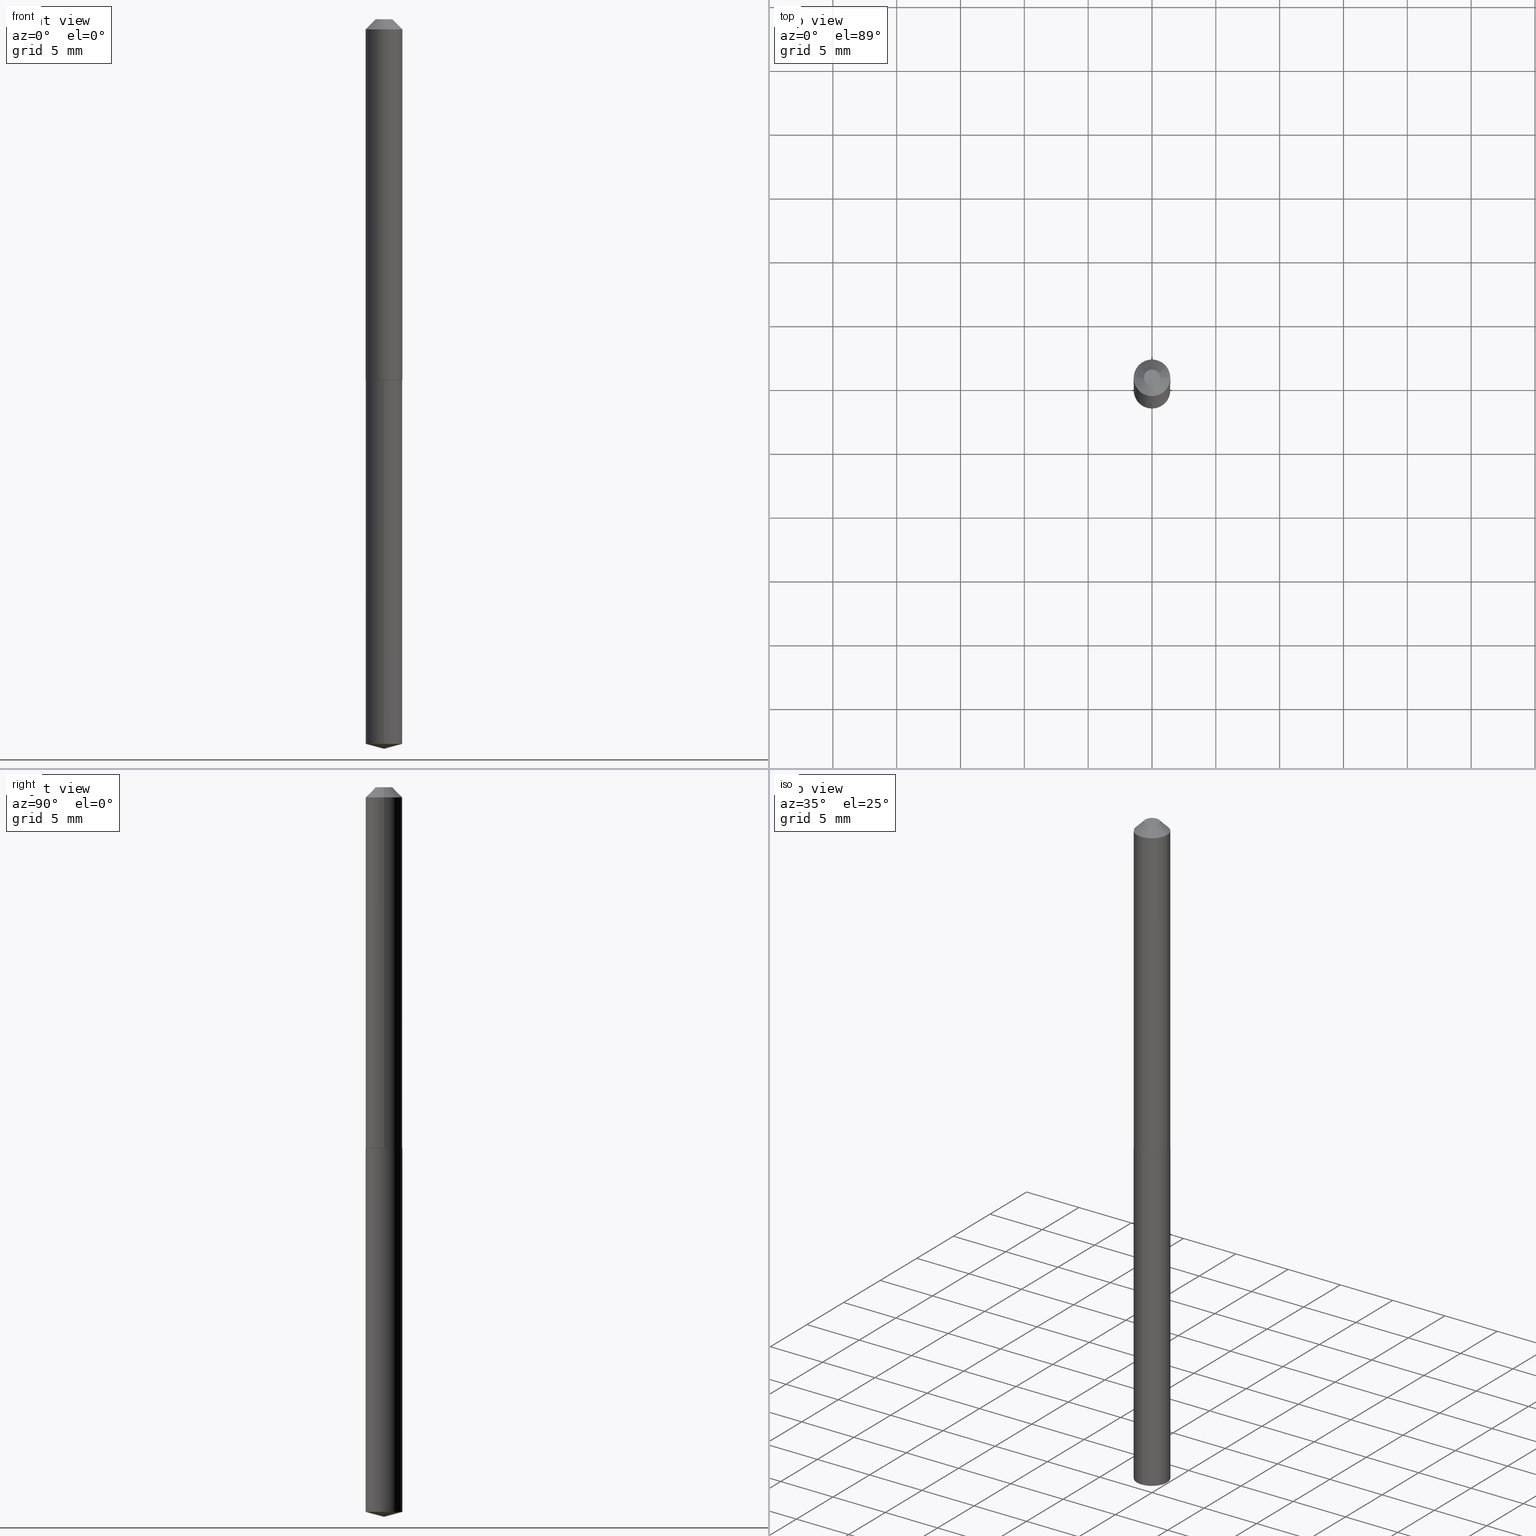
[diagram: canonical four-view strip — front | top / right | iso, engineering-drawing reading convention]
A machine part, canonical four-view strip (front | top / right | iso — engineering-drawing reading convention). The complete STEP part file that produces these views, byte-faithful:
ISO-10303-21;
HEADER;
FILE_DESCRIPTION (( 'STEP AP203' ),
    '1' );
FILE_NAME ('58015.STEP',
    '2024-04-23T00:13:43',
    ( '' ),
    ( '' ),
    'SwSTEP 2.0',
    'SolidWorks 2023',
    '' );
FILE_SCHEMA (( 'CONFIG_CONTROL_DESIGN' ));
ENDSEC;

DATA;
#1 = CONICAL_SURFACE ( 'NONE', #65, 146.9311341562565758, 1.308996938995749870 ) ;
#2 = APPROVAL_PERSON_ORGANIZATION ( #264, #121, #308 ) ;
#3 = FACE_OUTER_BOUND ( 'NONE', #337, .T. ) ;
#4 = PRODUCT_RELATED_PRODUCT_CATEGORY ( 'detail', '', ( #14 ) ) ;
#5 = DIRECTION ( 'NONE',  ( -2.446326922629203829E-29, 3.490252467254286211E-15, 1.000000000000000000 ) ) ;
#6 = DIRECTION ( 'NONE',  ( -2.446326922629204109E-29, 3.490252467254285817E-15, 1.000000000000000000 ) ) ;
#7 = ADVANCED_FACE ( 'NONE', ( #342 ), #165, .T. ) ;
#8 = DIRECTION ( 'NONE',  ( 0.7071067811866441621, -2.468850131083269169E-15, 0.7071067811864508723 ) ) ;
#9 = VECTOR ( 'NONE', #56, 39.37007874015748143 ) ;
#10 = DIRECTION ( 'NONE',  ( -6.745023994389843077E-15, -0.9659258262890679791, 0.2588190451025215721 ) ) ;
#11 =( CONVERSION_BASED_UNIT ( 'INCH', #75 ) LENGTH_UNIT ( ) NAMED_UNIT ( #122 ) );
#12 = CARTESIAN_POINT ( 'NONE',  ( -9.080880307576544813E-28, 1.295570786734296165E-13, 37.12007874015748143 ) ) ;
#13 = EDGE_LOOP ( 'NONE', ( #43, #143 ) ) ;
#14 = PRODUCT ( '58015', '58015', '', ( #178 ) ) ;
#15 = DIRECTION ( 'NONE',  ( 1.000000000000000000, -6.982962677686265133E-15, 0.000000000000000000 ) ) ;
#16 = AXIS2_PLACEMENT_3D ( 'NONE', #126, #278, #313 ) ;
#17 = CC_DESIGN_DATE_AND_TIME_ASSIGNMENT ( #208, #61, ( #167 ) ) ;
#18 = CLOSED_SHELL ( 'NONE', ( #356, #32, #326, #247, #380 ) ) ;
#19 = DIRECTION ( 'NONE',  ( 1.000000000000000000, -6.982962677686265133E-15, 0.000000000000000000 ) ) ;
#20 = ORIENTED_EDGE ( 'NONE', *, *, #198, .T. ) ;
#21 = CARTESIAN_POINT ( 'NONE',  ( 7.642090019328602662E-31, -1.091087918388490267E-16, -0.03125000000000020817 ) ) ;
#22 = ORIENTED_EDGE ( 'NONE', *, *, #91, .T. ) ;
#23 = APPROVAL ( #89, 'UNSPECIFIED' ) ;
#24 = DIRECTION ( 'NONE',  ( -6.982962677686265922E-15, -1.000000000000000000, 4.835129192326129423E-15 ) ) ;
#25 = CALENDAR_DATE ( 2024, 22, 4 ) ;
#26 = EDGE_CURVE ( 'NONE', #240, #77, #299, .T. ) ;
#27 = COORDINATED_UNIVERSAL_TIME_OFFSET ( 5, 0, .BEHIND. ) ;
#28 = AXIS2_PLACEMENT_3D ( 'NONE', #296, #384, #85 ) ;
#29 = CARTESIAN_POINT ( 'NONE',  ( 4.014566457045113930E-16, 0.05649999999999611583, -1.112999999999999767 ) ) ;
#30 = ORIENTED_EDGE ( 'NONE', *, *, #234, .T. ) ;
#31 = PERSON_AND_ORGANIZATION ( #272, #301 ) ;
#32 = ADVANCED_FACE ( 'NONE', ( #131 ), #1, .T. ) ;
#33 = CARTESIAN_POINT ( 'NONE',  ( 0.05650000000000000161, -4.967269287129405456E-16, -0.03125000000000020817 ) ) ;
#34 = DATE_AND_TIME ( #246, #112 ) ;
#35 = AXIS2_PLACEMENT_3D ( 'NONE', #41, #137, #19 ) ;
#36 = EDGE_LOOP ( 'NONE', ( #136, #373 ) ) ;
#37 = ORIENTED_EDGE ( 'NONE', *, *, #361, .T. ) ;
#38 = CARTESIAN_POINT ( 'NONE',  ( -3.945373912892193774E-16, -0.05650000000000780093, -2.234860870627641383 ) ) ;
#39 = DIRECTION ( 'NONE',  ( -0.7071067811865451302, 2.468850131082231817E-15, -0.7071067811865499042 ) ) ;
#40 = DIRECTION ( 'NONE',  ( -6.982962677686267499E-15, -1.000000000000000000, 3.510303681827602962E-15 ) ) ;
#41 = CARTESIAN_POINT ( 'NONE',  ( 2.720584046880963679E-29, -3.884272989462998480E-15, -1.112499999999999600 ) ) ;
#42 = CARTESIAN_POINT ( 'NONE',  ( -2.994835545909303567E-48, 4.275831445896940960E-34, 1.224646799147343755E-19 ) ) ;
#43 = ORIENTED_EDGE ( 'NONE', *, *, #292, .F. ) ;
#44 = CARTESIAN_POINT ( 'NONE',  ( 0.05650000000000006406, -3.945373912892745484E-16, 2.755039878324706638E-30 ) ) ;
#45 = CIRCLE ( 'NONE', #323, 0.05650000000000000161 ) ;
#46 = ORIENTED_EDGE ( 'NONE', *, *, #63, .T. ) ;
#47 = UNCERTAINTY_MEASURE_WITH_UNIT (LENGTH_MEASURE( 1.000000000000000082E-05 ), #11, 'distance_accuracy_value', 'NONE');
#48 = DIRECTION ( 'NONE',  ( -2.445468806185136597E-29, 3.491481338843145583E-15, 1.000000000000000000 ) ) ;
#49 = ADVANCED_FACE ( 'NONE', ( #68 ), #128, .T. ) ;
#50 = CARTESIAN_POINT ( 'NONE',  ( 2.721806781284056481E-29, -3.886018730132419983E-15, -1.112999999999999767 ) ) ;
#51 = ORIENTED_EDGE ( 'NONE', *, *, #158, .T. ) ;
#52 = CARTESIAN_POINT ( 'NONE',  ( -1.497417772954651783E-48, 2.137915722948470480E-34, 6.123233995736718774E-20 ) ) ;
#53 = ORIENTED_EDGE ( 'NONE', *, *, #267, .F. ) ;
#54 = LOCAL_TIME ( 20, 13, 43.00000000000000000, #235 ) ;
#55 = PERSON_AND_ORGANIZATION ( #272, #301 ) ;
#56 = DIRECTION ( 'NONE',  ( -2.445468806185136877E-29, 3.491481338843145188E-15, 1.000000000000000000 ) ) ;
#57 = APPROVAL_DATE_TIME ( #302, #23 ) ;
#58 = EDGE_CURVE ( 'NONE', #163, #379, #117, .T. ) ;
#59 = CARTESIAN_POINT ( 'NONE',  ( 0.000000000000000000, 0.000000000000000000, 0.000000000000000000 ) ) ;
#60 = ORIENTED_EDGE ( 'NONE', *, *, #74, .F. ) ;
#61 = DATE_TIME_ROLE ( 'classification_date' ) ;
#62 = LOCAL_TIME ( 20, 13, 43.00000000000000000, #269 ) ;
#63 = EDGE_CURVE ( 'NONE', #125, #217, #338, .T. ) ;
#64 = DIRECTION ( 'NONE',  ( -2.445468806185136877E-29, 3.491481338843145188E-15, 1.000000000000000000 ) ) ;
#65 = AXIS2_PLACEMENT_3D ( 'NONE', #245, #6, #40 ) ;
#66 = CC_DESIGN_APPROVAL ( #23, ( #88 ) ) ;
#67 = AXIS2_PLACEMENT_3D ( 'NONE', #59, #206, #390 ) ;
#68 = FACE_OUTER_BOUND ( 'NONE', #191, .T. ) ;
#69 = APPROVAL_DATE_TIME ( #34, #121 ) ;
#70 = LINE ( 'NONE', #188, #232 ) ;
#71 = DIRECTION ( 'NONE',  ( -6.982962677686265922E-15, -1.000000000000000000, 4.835129192326129423E-15 ) ) ;
#72 = ORIENTED_EDGE ( 'NONE', *, *, #349, .F. ) ;
#73 = DIRECTION ( 'NONE',  ( 2.445468806185136597E-29, -3.491481338843145583E-15, -1.000000000000000000 ) ) ;
#74 = EDGE_CURVE ( 'NONE', #298, #77, #219, .T. ) ;
#75 = LENGTH_MEASURE_WITH_UNIT ( LENGTH_MEASURE( 0.02539999999999999897 ), #220 );
#76 = CARTESIAN_POINT ( 'NONE',  ( 2.720584046880963679E-29, -3.884272989462998480E-15, -1.112499999999999600 ) ) ;
#77 = VERTEX_POINT ( 'NONE', #249 ) ;
#78 = DIRECTION ( 'NONE',  ( 1.000000000000000000, -6.982962677686265133E-15, 0.000000000000000000 ) ) ;
#79 = DIRECTION ( 'NONE',  ( -2.446326922629204109E-29, 3.490252467254285817E-15, 1.000000000000000000 ) ) ;
#80 = ORIENTED_EDGE ( 'NONE', *, *, #242, .F. ) ;
#81 = AXIS2_PLACEMENT_3D ( 'NONE', #200, #295, #288 ) ;
#82 = ORIENTED_EDGE ( 'NONE', *, *, #254, .T. ) ;
#83 = PLANE ( 'NONE',  #377 ) ;
#84 = APPROVAL_ROLE ( '' ) ;
#85 = DIRECTION ( 'NONE',  ( 1.000000000000000000, -6.982962677686267499E-15, 4.876185537781949510E-29 ) ) ;
#86 = CONICAL_SURFACE ( 'NONE', #35, 0.05650000000000013345, 0.7853981633975849475 ) ;
#87 = CALENDAR_DATE ( 2024, 22, 4 ) ;
#88 = PRODUCT_DEFINITION ( 'UNKNOWN', '', #118, #150 ) ;
#89 = APPROVAL_STATUS ( 'not_yet_approved' ) ;
#90 = COORDINATED_UNIVERSAL_TIME_OFFSET ( 5, 0, .BEHIND. ) ;
#91 = EDGE_CURVE ( 'NONE', #333, #103, #45, .T. ) ;
#92 = VECTOR ( 'NONE', #319, 39.37007874015748143 ) ;
#93 = DIRECTION ( 'NONE',  ( 1.000000000000000000, -6.982962677686267499E-15, 4.876176775795935232E-29 ) ) ;
#94 = DIRECTION ( 'NONE',  ( -6.982962677686265922E-15, -1.000000000000000000, 2.417564596163064711E-15 ) ) ;
#95 = AXIS2_PLACEMENT_3D ( 'NONE', #187, #248, #130 ) ;
#96 = EDGE_CURVE ( 'NONE', #379, #163, #350, .T. ) ;
#97 =( GEOMETRIC_REPRESENTATION_CONTEXT ( 3 ) GLOBAL_UNCERTAINTY_ASSIGNED_CONTEXT ( ( #47 ) ) GLOBAL_UNIT_ASSIGNED_CONTEXT ( ( #11, #347, #104 ) ) REPRESENTATION_CONTEXT ( 'NONE', 'WORKASPACE' ) );
#98 = LINE ( 'NONE', #102, #192 ) ;
#99 = VERTEX_POINT ( 'NONE', #281 ) ;
#100 = CYLINDRICAL_SURFACE ( 'NONE', #315, 0.05650000000000006406 ) ;
#101 = DIRECTION ( 'NONE',  ( 2.446326922629203549E-29, -3.490252467254286211E-15, -1.000000000000000000 ) ) ;
#102 = CARTESIAN_POINT ( 'NONE',  ( 5.504252325827321277E-29, -7.853068051322142694E-15, -2.249999999999999556 ) ) ;
#103 = VERTEX_POINT ( 'NONE', #38 ) ;
#104 =( NAMED_UNIT ( * ) SI_UNIT ( $, .STERADIAN. ) SOLID_ANGLE_UNIT ( ) );
#105 = CARTESIAN_POINT ( 'NONE',  ( 2.721806781284055920E-29, -3.886018730132419194E-15, -1.112999999999999545 ) ) ;
#106 = CIRCLE ( 'NONE', #129, 0.02524999999999999814 ) ;
#107 = ORIENTED_EDGE ( 'NONE', *, *, #96, .F. ) ;
#108 = FACE_OUTER_BOUND ( 'NONE', #270, .T. ) ;
#109 = CYLINDRICAL_SURFACE ( 'NONE', #81, 0.05650000000000000161 ) ;
#110 = ORIENTED_EDGE ( 'NONE', *, *, #361, .F. ) ;
#111 = CARTESIAN_POINT ( 'NONE',  ( 7.642090019328602662E-31, -1.091087918388490267E-16, -0.03125000000000020817 ) ) ;
#112 = LOCAL_TIME ( 20, 13, 43.00000000000000000, #367 ) ;
#113 = DIRECTION ( 'NONE',  ( -1.000000000000000000, 6.982962677686265922E-15, 0.000000000000000000 ) ) ;
#114 = DATE_AND_TIME ( #145, #123 ) ;
#115 = APPROVAL ( #388, 'UNSPECIFIED' ) ;
#116 = DATE_TIME_ROLE ( 'creation_date' ) ;
#117 = CIRCLE ( 'NONE', #215, 0.05650000000000000161 ) ;
#118 = PRODUCT_DEFINITION_FORMATION_WITH_SPECIFIED_SOURCE ( 'ANY', '', #14, .NOT_KNOWN. ) ;
#119 = PERSON_AND_ORGANIZATION_ROLE ( 'creator' ) ;
#120 = ORIENTED_EDGE ( 'NONE', *, *, #321, .F. ) ;
#121 = APPROVAL ( #280, 'UNSPECIFIED' ) ;
#122 = DIMENSIONAL_EXPONENTS ( 1.000000000000000000, 0.000000000000000000, 0.000000000000000000, 0.000000000000000000, 0.000000000000000000, 0.000000000000000000, 0.000000000000000000 ) ;
#123 = LOCAL_TIME ( 20, 13, 43.00000000000000000, #27 ) ;
#124 = CARTESIAN_POINT ( 'NONE',  ( -0.05650000000000006406, 4.014566457044570602E-16, -2.779198325994025135E-30 ) ) ;
#125 = VERTEX_POINT ( 'NONE', #273 ) ;
#126 = CARTESIAN_POINT ( 'NONE',  ( 7.642090019328602662E-31, -1.091087918388490267E-16, -0.03125000000000020817 ) ) ;
#127 = ADVANCED_FACE ( 'NONE', ( #3 ), #100, .T. ) ;
#128 = CYLINDRICAL_SURFACE ( 'NONE', #265, 0.05650000000000006406 ) ;
#129 = AXIS2_PLACEMENT_3D ( 'NONE', #42, #48, #355 ) ;
#130 = DIRECTION ( 'NONE',  ( 1.000000000000000000, -6.982962677686269077E-15, 0.000000000000000000 ) ) ;
#131 = FACE_OUTER_BOUND ( 'NONE', #253, .T. ) ;
#132 = ORIENTED_EDGE ( 'NONE', *, *, #262, .F. ) ;
#133 = EDGE_LOOP ( 'NONE', ( #330, #277, #375 ) ) ;
#134 = FACE_OUTER_BOUND ( 'NONE', #36, .T. ) ;
#135 = CIRCLE ( 'NONE', #186, 0.05600000000000009831 ) ;
#136 = ORIENTED_EDGE ( 'NONE', *, *, #321, .T. ) ;
#137 = DIRECTION ( 'NONE',  ( -2.445468806185136597E-29, 3.491481338843145583E-15, 1.000000000000000000 ) ) ;
#138 = VERTEX_POINT ( 'NONE', #156 ) ;
#139 = PLANE ( 'NONE',  #141 ) ;
#140 = DIRECTION ( 'NONE',  ( -2.445468806185136597E-29, 3.491481338843145583E-15, 1.000000000000000000 ) ) ;
#141 = AXIS2_PLACEMENT_3D ( 'NONE', #52, #353, #378 ) ;
#142 = SECURITY_CLASSIFICATION_LEVEL ( 'unclassified' ) ;
#143 = ORIENTED_EDGE ( 'NONE', *, *, #63, .F. ) ;
#144 = EDGE_CURVE ( 'NONE', #225, #103, #214, .T. ) ;
#145 = CALENDAR_DATE ( 2024, 22, 4 ) ;
#146 = PERSON_AND_ORGANIZATION_ROLE ( 'creator' ) ;
#147 = LINE ( 'NONE', #204, #328 ) ;
#148 = VECTOR ( 'NONE', #5, 39.37007874015748143 ) ;
#149 = PERSON_AND_ORGANIZATION_ROLE ( 'design_supplier' ) ;
#150 = DESIGN_CONTEXT ( 'detailed design', #385, 'design' ) ;
#151 = PRODUCT_DEFINITION_SHAPE ( 'NONE', 'NONE',  #88 ) ;
#152 = CARTESIAN_POINT ( 'NONE',  ( 5.466245232544695378E-29, -7.801596401756588387E-15, -2.234860870627641383 ) ) ;
#153 = CONICAL_SURFACE ( 'NONE', #243, 146.9311341562565758, 1.308996938995749870 ) ;
#154 = DIRECTION ( 'NONE',  ( -2.445468806185136597E-29, 3.491481338843145583E-15, 1.000000000000000000 ) ) ;
#155 = EDGE_CURVE ( 'NONE', #103, #163, #312, .T. ) ;
#156 = CARTESIAN_POINT ( 'NONE',  ( 0.05650000000000013345, -4.278810380752273274E-15, -1.112499999999999600 ) ) ;
#157 = CARTESIAN_POINT ( 'NONE',  ( 0.05650000000000013345, -4.278810380752273274E-15, -1.112499999999999600 ) ) ;
#158 = EDGE_CURVE ( 'NONE', #99, #240, #343, .T. ) ;
#159 = AXIS2_PLACEMENT_3D ( 'NONE', #21, #325, #113 ) ;
#160 = CARTESIAN_POINT ( 'NONE',  ( 0.000000000000000000, 0.000000000000000000, 0.000000000000000000 ) ) ;
#161 = ORIENTED_EDGE ( 'NONE', *, *, #183, .T. ) ;
#162 = CARTESIAN_POINT ( 'NONE',  ( 2.721806781284055920E-29, -3.886018730132419194E-15, -1.112999999999999545 ) ) ;
#163 = VERTEX_POINT ( 'NONE', #184 ) ;
#164 = CARTESIAN_POINT ( 'NONE',  ( -0.05650000000000013345, -3.482816343758540729E-15, -1.112499999999999600 ) ) ;
#165 = CONICAL_SURFACE ( 'NONE', #185, 0.05650000000000000161, 0.7853981633974449483 ) ;
#166 = CARTESIAN_POINT ( 'NONE',  ( 2.720584046880963679E-29, -3.884272989462998480E-15, -1.112499999999999600 ) ) ;
#167 = SECURITY_CLASSIFICATION ( '', '', #142 ) ;
#168 = ORIENTED_EDGE ( 'NONE', *, *, #271, .F. ) ;
#169 = EDGE_CURVE ( 'NONE', #225, #333, #98, .T. ) ;
#170 = FACE_OUTER_BOUND ( 'NONE', #365, .T. ) ;
#171 = DIRECTION ( 'NONE',  ( -2.438088387897960049E-29, 3.491481338843145188E-15, 1.000000000000000000 ) ) ;
#172 = PERSON_AND_ORGANIZATION ( #272, #301 ) ;
#173 = CC_DESIGN_PERSON_AND_ORGANIZATION_ASSIGNMENT ( #268, #149, ( #118 ) ) ;
#174 = LOCAL_TIME ( 20, 13, 43.00000000000000000, #90 ) ;
#175 = PERSON_AND_ORGANIZATION ( #272, #301 ) ;
#176 = FACE_OUTER_BOUND ( 'NONE', #291, .T. ) ;
#177 = CYLINDRICAL_SURFACE ( 'NONE', #351, 0.05650000000000000161 ) ;
#178 = MECHANICAL_CONTEXT ( 'NONE', #213, 'mechanical' ) ;
#179 = AXIS2_PLACEMENT_3D ( 'NONE', #50, #101, #293 ) ;
#180 = ORIENTED_EDGE ( 'NONE', *, *, #158, .F. ) ;
#181 = APPROVAL_DATE_TIME ( #241, #115 ) ;
#182 = ADVANCED_BREP_SHAPE_REPRESENTATION ( '58015', ( #358, #363, #67 ), #97 ) ;
#183 = EDGE_CURVE ( 'NONE', #228, #240, #70, .T. ) ;
#184 = CARTESIAN_POINT ( 'NONE',  ( -3.945373912892467903E-16, -0.05650000000000388045, -1.112999999999999545 ) ) ;
#185 = AXIS2_PLACEMENT_3D ( 'NONE', #366, #73, #194 ) ;
#186 = AXIS2_PLACEMENT_3D ( 'NONE', #162, #259, #381 ) ;
#187 = CARTESIAN_POINT ( 'NONE',  ( 2.721806781284055920E-29, -3.886018730132419194E-15, -1.112999999999999545 ) ) ;
#188 = CARTESIAN_POINT ( 'NONE',  ( -0.05650000000000000161, 2.854285994504250533E-16, -0.03125000000000020817 ) ) ;
#189 = CC_DESIGN_PERSON_AND_ORGANIZATION_ASSIGNMENT ( #172, #119, ( #88 ) ) ;
#190 = FACE_OUTER_BOUND ( 'NONE', #306, .T. ) ;
#191 = EDGE_LOOP ( 'NONE', ( #180, #199, #335, #352 ) ) ;
#192 = VECTOR ( 'NONE', #340, 39.37007874015748143 ) ;
#193 = CONICAL_SURFACE ( 'NONE', #205, 0.05650000000000013345, 0.7853981633975849475 ) ;
#194 = DIRECTION ( 'NONE',  ( -1.000000000000000000, 6.982962677686265922E-15, 0.000000000000000000 ) ) ;
#195 = CARTESIAN_POINT ( 'NONE',  ( -0.05650000000000000161, -1.595234244946465645E-15, -0.03125000000000020817 ) ) ;
#196 = ORIENTED_EDGE ( 'NONE', *, *, #169, .T. ) ;
#197 = CARTESIAN_POINT ( 'NONE',  ( 4.014566457045111958E-16, 0.05649999999999219535, -2.234860870627641827 ) ) ;
#198 = EDGE_CURVE ( 'NONE', #217, #138, #309, .T. ) ;
#199 = ORIENTED_EDGE ( 'NONE', *, *, #267, .T. ) ;
#200 = CARTESIAN_POINT ( 'NONE',  ( 2.721806781284056481E-29, -3.886018730132419983E-15, -1.112999999999999767 ) ) ;
#201 = CIRCLE ( 'NONE', #28, 0.02524999999999999814 ) ;
#202 = ORIENTED_EDGE ( 'NONE', *, *, #155, .F. ) ;
#203 = CARTESIAN_POINT ( 'NONE',  ( 0.05600000000000009831, -4.277064640082850982E-15, -1.112999999999999545 ) ) ;
#204 = CARTESIAN_POINT ( 'NONE',  ( 4.014566457044837829E-16, 0.05649999999999611583, -1.112999999999999767 ) ) ;
#205 = AXIS2_PLACEMENT_3D ( 'NONE', #166, #346, #78 ) ;
#206 = DIRECTION ( 'NONE',  ( 0.000000000000000000, 0.000000000000000000, 1.000000000000000000 ) ) ;
#207 = PERSON_AND_ORGANIZATION_ROLE ( 'classification_officer' ) ;
#208 = DATE_AND_TIME ( #386, #174 ) ;
#209 = DIRECTION ( 'NONE',  ( -6.982962677686265922E-15, -1.000000000000000000, 2.417564596163064711E-15 ) ) ;
#210 = AXIS2_PLACEMENT_3D ( 'NONE', #221, #284, #368 ) ;
#211 = ADVANCED_FACE ( 'NONE', ( #190 ), #283, .T. ) ;
#212 = DIRECTION ( 'NONE',  ( 1.000000000000000000, -6.982962677686267499E-15, 4.876176775795935232E-29 ) ) ;
#213 = APPLICATION_CONTEXT ( 'configuration controlled 3d designs of mechanical parts and assemblies' ) ;
#214 = LINE ( 'NONE', #374, #364 ) ;
#215 = AXIS2_PLACEMENT_3D ( 'NONE', #244, #276, #94 ) ;
#216 = CC_DESIGN_SECURITY_CLASSIFICATION ( #167, ( #118 ) ) ;
#217 = VERTEX_POINT ( 'NONE', #203 ) ;
#218 = ORIENTED_EDGE ( 'NONE', *, *, #254, .F. ) ;
#219 = LINE ( 'NONE', #33, #389 ) ;
#220 =( LENGTH_UNIT ( ) NAMED_UNIT ( * ) SI_UNIT ( $, .METRE. ) );
#221 = CARTESIAN_POINT ( 'NONE',  ( 2.721806781284056481E-29, -3.886018730132419983E-15, -1.112999999999999767 ) ) ;
#222 = ORIENTED_EDGE ( 'NONE', *, *, #58, .F. ) ;
#223 = CIRCLE ( 'NONE', #359, 0.05650000000000000161 ) ;
#224 = DIRECTION ( 'NONE',  ( -6.982962677686267499E-15, -1.000000000000000000, 3.510303681827602962E-15 ) ) ;
#225 = VERTEX_POINT ( 'NONE', #263 ) ;
#226 = FACE_OUTER_BOUND ( 'NONE', #282, .T. ) ;
#227 = CARTESIAN_POINT ( 'NONE',  ( -0.02524999999999999814, 2.308742035310016370E-16, 1.224646799133108244E-19 ) ) ;
#228 = VERTEX_POINT ( 'NONE', #227 ) ;
#229 = CARTESIAN_POINT ( 'NONE',  ( 0.02524999999999999814, -3.349772515783358639E-16, 1.224646799165214218E-19 ) ) ;
#230 = ORIENTED_EDGE ( 'NONE', *, *, #234, .F. ) ;
#231 = ORIENTED_EDGE ( 'NONE', *, *, #183, .F. ) ;
#232 = VECTOR ( 'NONE', #39, 39.37007874015748143 ) ;
#233 = DIRECTION ( 'NONE',  ( 1.000000000000000000, -6.982962677686265922E-15, 0.000000000000000000 ) ) ;
#234 = EDGE_CURVE ( 'NONE', #138, #99, #332, .T. ) ;
#235 = COORDINATED_UNIVERSAL_TIME_OFFSET ( 5, 0, .BEHIND. ) ;
#236 = DIRECTION ( 'NONE',  ( 1.000000000000000000, -6.982962677686265133E-15, 0.000000000000000000 ) ) ;
#237 = PERSON_AND_ORGANIZATION_ROLE ( 'design_owner' ) ;
#238 = APPROVAL_PERSON_ORGANIZATION ( #175, #23, #362 ) ;
#239 = ADVANCED_FACE ( 'NONE', ( #170 ), #86, .T. ) ;
#240 = VERTEX_POINT ( 'NONE', #195 ) ;
#241 = DATE_AND_TIME ( #25, #62 ) ;
#242 = EDGE_CURVE ( 'NONE', #125, #99, #266, .T. ) ;
#243 = AXIS2_PLACEMENT_3D ( 'NONE', #12, #252, #224 ) ;
#244 = CARTESIAN_POINT ( 'NONE',  ( 2.721806781284056481E-29, -3.886018730132419983E-15, -1.112999999999999767 ) ) ;
#245 = CARTESIAN_POINT ( 'NONE',  ( -9.080880307576544813E-28, 1.295570786734296165E-13, 37.12007874015748143 ) ) ;
#246 = CALENDAR_DATE ( 2024, 22, 4 ) ;
#247 = ADVANCED_FACE ( 'NONE', ( #376 ), #109, .T. ) ;
#248 = DIRECTION ( 'NONE',  ( -2.445468806185136597E-29, 3.491481338843145583E-15, 1.000000000000000000 ) ) ;
#249 = CARTESIAN_POINT ( 'NONE',  ( 0.05650000000000000161, -5.036461831281230081E-16, -0.03125000000000020817 ) ) ;
#250 = CARTESIAN_POINT ( 'NONE',  ( 0.000000000000000000, 0.000000000000000000, 0.000000000000000000 ) ) ;
#251 = ORIENTED_EDGE ( 'NONE', *, *, #74, .T. ) ;
#252 = DIRECTION ( 'NONE',  ( -2.446326922629204109E-29, 3.490252467254285817E-15, 1.000000000000000000 ) ) ;
#253 = EDGE_LOOP ( 'NONE', ( #257, #196, #218 ) ) ;
#254 = EDGE_CURVE ( 'NONE', #103, #333, #316, .T. ) ;
#255 = CIRCLE ( 'NONE', #305, 0.05650000000000013345 ) ;
#256 = FACE_OUTER_BOUND ( 'NONE', #13, .T. ) ;
#257 = ORIENTED_EDGE ( 'NONE', *, *, #144, .F. ) ;
#258 = PLANE ( 'NONE',  #179 ) ;
#259 = DIRECTION ( 'NONE',  ( -2.445468806185136597E-29, 3.491481338843145583E-15, 1.000000000000000000 ) ) ;
#260 = ORIENTED_EDGE ( 'NONE', *, *, #58, .T. ) ;
#261 = ORIENTED_EDGE ( 'NONE', *, *, #26, .T. ) ;
#262 = EDGE_CURVE ( 'NONE', #298, #228, #106, .T. ) ;
#263 = CARTESIAN_POINT ( 'NONE',  ( 5.504235575915709596E-29, -7.853068051322142694E-15, -2.249999999999999556 ) ) ;
#264 = PERSON_AND_ORGANIZATION ( #272, #301 ) ;
#265 = AXIS2_PLACEMENT_3D ( 'NONE', #160, #154, #93 ) ;
#266 = LINE ( 'NONE', #164, #92 ) ;
#267 = EDGE_CURVE ( 'NONE', #99, #138, #255, .T. ) ;
#268 = PERSON_AND_ORGANIZATION ( #272, #301 ) ;
#269 = COORDINATED_UNIVERSAL_TIME_OFFSET ( 5, 0, .BEHIND. ) ;
#270 = EDGE_LOOP ( 'NONE', ( #314, #354, #230, #289 ) ) ;
#271 = EDGE_CURVE ( 'NONE', #77, #240, #223, .T. ) ;
#272 = PERSON ( 'UNSPECIFIED', 'UNSPECIFIED', 'UNSPECIFIED', ('UNSPECIFIED'), ('UNSPECIFIED'), ('UNSPECIFIED') ) ;
#273 = CARTESIAN_POINT ( 'NONE',  ( -0.05600000000000009831, -3.485465570932651536E-15, -1.112999999999999545 ) ) ;
#274 = VECTOR ( 'NONE', #64, 39.37007874015748143 ) ;
#275 = CC_DESIGN_APPROVAL ( #121, ( #167 ) ) ;
#276 = DIRECTION ( 'NONE',  ( -2.446326922629204109E-29, 3.490252467254285817E-15, 1.000000000000000000 ) ) ;
#277 = ORIENTED_EDGE ( 'NONE', *, *, #144, .T. ) ;
#278 = DIRECTION ( 'NONE',  ( -2.445468806185136597E-29, 3.491481338843145583E-15, 1.000000000000000000 ) ) ;
#279 = CC_DESIGN_DATE_AND_TIME_ASSIGNMENT ( #114, #116, ( #88 ) ) ;
#280 = APPROVAL_STATUS ( 'not_yet_approved' ) ;
#281 = CARTESIAN_POINT ( 'NONE',  ( -0.05650000000000013345, -3.482816343758540729E-15, -1.112499999999999600 ) ) ;
#282 = EDGE_LOOP ( 'NONE', ( #260, #294 ) ) ;
#283 = CONICAL_SURFACE ( 'NONE', #159, 0.05650000000000000161, 0.7853981633974449483 ) ;
#284 = DIRECTION ( 'NONE',  ( -2.446326922629204109E-29, 3.490252467254285817E-15, 1.000000000000000000 ) ) ;
#285 = ORIENTED_EDGE ( 'NONE', *, *, #155, .T. ) ;
#286 = CARTESIAN_POINT ( 'NONE',  ( 5.466245232544695378E-29, -7.801596401756588387E-15, -2.234860870627641383 ) ) ;
#287 = ADVANCED_FACE ( 'NONE', ( #134 ), #139, .F. ) ;
#288 = DIRECTION ( 'NONE',  ( -6.982962677686265922E-15, -1.000000000000000000, 2.417564596163064711E-15 ) ) ;
#289 = ORIENTED_EDGE ( 'NONE', *, *, #198, .F. ) ;
#290 = CARTESIAN_POINT ( 'NONE',  ( 2.720584046880963679E-29, -3.884272989462998480E-15, -1.112499999999999600 ) ) ;
#291 = EDGE_LOOP ( 'NONE', ( #82, #37, #222, #202 ) ) ;
#292 = EDGE_CURVE ( 'NONE', #217, #125, #135, .T. ) ;
#293 = DIRECTION ( 'NONE',  ( 6.982962677686265922E-15, 1.000000000000000000, -3.490252467254286211E-15 ) ) ;
#294 = ORIENTED_EDGE ( 'NONE', *, *, #96, .T. ) ;
#295 = DIRECTION ( 'NONE',  ( -2.446326922629204109E-29, 3.490252467254285817E-15, 1.000000000000000000 ) ) ;
#296 = CARTESIAN_POINT ( 'NONE',  ( -2.994835545909303567E-48, 4.275831445896940960E-34, 1.224646799147343755E-19 ) ) ;
#297 = PERSON_AND_ORGANIZATION ( #272, #301 ) ;
#298 = VERTEX_POINT ( 'NONE', #229 ) ;
#299 = CIRCLE ( 'NONE', #16, 0.05650000000000000161 ) ;
#300 = CARTESIAN_POINT ( 'NONE',  ( 2.721806781284056481E-29, -3.886018730132419983E-15, -1.112999999999999767 ) ) ;
#301 = ORGANIZATION ( 'UNSPECIFIED', 'UNSPECIFIED', '' ) ;
#302 = DATE_AND_TIME ( #87, #54 ) ;
#303 = CC_DESIGN_PERSON_AND_ORGANIZATION_ASSIGNMENT ( #307, #146, ( #118 ) ) ;
#304 = APPLICATION_PROTOCOL_DEFINITION ( 'international standard', 'config_control_design', 1994, #213 ) ;
#305 = AXIS2_PLACEMENT_3D ( 'NONE', #290, #382, #15 ) ;
#306 = EDGE_LOOP ( 'NONE', ( #132, #251, #322, #231 ) ) ;
#307 = PERSON_AND_ORGANIZATION ( #272, #301 ) ;
#308 = APPROVAL_ROLE ( '' ) ;
#309 = LINE ( 'NONE', #157, #370 ) ;
#310 = DIRECTION ( 'NONE',  ( -2.446326922629204109E-29, 3.490252467254285817E-15, 1.000000000000000000 ) ) ;
#311 = ADVANCED_FACE ( 'NONE', ( #256 ), #83, .F. ) ;
#312 = LINE ( 'NONE', #334, #148 ) ;
#313 = DIRECTION ( 'NONE',  ( 1.000000000000000000, -6.982962677686265922E-15, 0.000000000000000000 ) ) ;
#314 = ORIENTED_EDGE ( 'NONE', *, *, #292, .T. ) ;
#315 = AXIS2_PLACEMENT_3D ( 'NONE', #250, #371, #212 ) ;
#316 = CIRCLE ( 'NONE', #344, 0.05650000000000000161 ) ;
#317 = CC_DESIGN_PERSON_AND_ORGANIZATION_ASSIGNMENT ( #55, #237, ( #14 ) ) ;
#318 = FACE_OUTER_BOUND ( 'NONE', #133, .T. ) ;
#319 = DIRECTION ( 'NONE',  ( -0.7071067811866441621, 7.493145998870704414E-15, 0.7071067811864508723 ) ) ;
#320 = LINE ( 'NONE', #44, #9 ) ;
#321 = EDGE_CURVE ( 'NONE', #228, #298, #201, .T. ) ;
#322 = ORIENTED_EDGE ( 'NONE', *, *, #271, .T. ) ;
#323 = AXIS2_PLACEMENT_3D ( 'NONE', #152, #310, #71 ) ;
#324 = APPROVAL_PERSON_ORGANIZATION ( #297, #115, #84 ) ;
#325 = DIRECTION ( 'NONE',  ( 2.445468806185136597E-29, -3.491481338843145583E-15, -1.000000000000000000 ) ) ;
#326 = ADVANCED_FACE ( 'NONE', ( #318 ), #153, .T. ) ;
#327 = CLOSED_SHELL ( 'NONE', ( #211, #127, #329, #311, #239, #49, #7, #287 ) ) ;
#328 = VECTOR ( 'NONE', #360, 39.37007874015748143 ) ;
#329 = ADVANCED_FACE ( 'NONE', ( #108 ), #193, .T. ) ;
#330 = ORIENTED_EDGE ( 'NONE', *, *, #169, .F. ) ;
#331 = APPLICATION_PROTOCOL_DEFINITION ( 'international standard', 'config_control_design', 1994, #385 ) ;
#332 = CIRCLE ( 'NONE', #383, 0.05650000000000013345 ) ;
#333 = VERTEX_POINT ( 'NONE', #197 ) ;
#334 = CARTESIAN_POINT ( 'NONE',  ( -3.945373912892467903E-16, -0.05650000000000388045, -1.112999999999999545 ) ) ;
#335 = ORIENTED_EDGE ( 'NONE', *, *, #349, .T. ) ;
#336 = SHAPE_DEFINITION_REPRESENTATION ( #151, #182 ) ;
#337 = EDGE_LOOP ( 'NONE', ( #30, #51, #168, #72 ) ) ;
#338 = CIRCLE ( 'NONE', #95, 0.05600000000000009831 ) ;
#339 = CC_DESIGN_APPROVAL ( #115, ( #118 ) ) ;
#340 = DIRECTION ( 'NONE',  ( 6.863315791527696626E-15, 0.9659258262890698665, 0.2588190451025147998 ) ) ;
#341 = EDGE_LOOP ( 'NONE', ( #60, #120, #161, #261 ) ) ;
#342 = FACE_OUTER_BOUND ( 'NONE', #341, .T. ) ;
#343 = LINE ( 'NONE', #124, #274 ) ;
#344 = AXIS2_PLACEMENT_3D ( 'NONE', #286, #79, #24 ) ;
#345 = DIRECTION ( 'NONE',  ( 1.000000000000000000, -6.982962677686265922E-15, 4.876176775795935793E-29 ) ) ;
#346 = DIRECTION ( 'NONE',  ( -2.445468806185136597E-29, 3.491481338843145583E-15, 1.000000000000000000 ) ) ;
#347 =( NAMED_UNIT ( * ) PLANE_ANGLE_UNIT ( ) SI_UNIT ( $, .RADIAN. ) );
#348 = DIRECTION ( 'NONE',  ( -2.445468806185136597E-29, 3.491481338843145583E-15, 1.000000000000000000 ) ) ;
#349 = EDGE_CURVE ( 'NONE', #138, #77, #320, .T. ) ;
#350 = CIRCLE ( 'NONE', #210, 0.05650000000000000161 ) ;
#351 = AXIS2_PLACEMENT_3D ( 'NONE', #300, #357, #209 ) ;
#352 = ORIENTED_EDGE ( 'NONE', *, *, #26, .F. ) ;
#353 = DIRECTION ( 'NONE',  ( 2.438088387897960049E-29, -3.491481338843145188E-15, -1.000000000000000000 ) ) ;
#354 = ORIENTED_EDGE ( 'NONE', *, *, #242, .T. ) ;
#355 = DIRECTION ( 'NONE',  ( 1.000000000000000000, -6.982962677686267499E-15, 4.876185537781949510E-29 ) ) ;
#356 = ADVANCED_FACE ( 'NONE', ( #176 ), #177, .T. ) ;
#357 = DIRECTION ( 'NONE',  ( -2.446326922629204109E-29, 3.490252467254285817E-15, 1.000000000000000000 ) ) ;
#358 = MANIFOLD_SOLID_BREP ( 'Body-Move/Copy2[1]', #18 ) ;
#359 = AXIS2_PLACEMENT_3D ( 'NONE', #111, #140, #233 ) ;
#360 = DIRECTION ( 'NONE',  ( -2.446326922629203829E-29, 3.490252467254286211E-15, 1.000000000000000000 ) ) ;
#361 = EDGE_CURVE ( 'NONE', #333, #379, #147, .T. ) ;
#362 = APPROVAL_ROLE ( '' ) ;
#363 = MANIFOLD_SOLID_BREP ( 'Body-Move/Copy2[2]', #327 ) ;
#364 = VECTOR ( 'NONE', #10, 39.37007874015748143 ) ;
#365 = EDGE_LOOP ( 'NONE', ( #80, #46, #20, #53 ) ) ;
#366 = CARTESIAN_POINT ( 'NONE',  ( 7.642090019328602662E-31, -1.091087918388490267E-16, -0.03125000000000020817 ) ) ;
#367 = COORDINATED_UNIVERSAL_TIME_OFFSET ( 5, 0, .BEHIND. ) ;
#368 = DIRECTION ( 'NONE',  ( -6.982962677686265922E-15, -1.000000000000000000, 2.417564596163064711E-15 ) ) ;
#369 = DIRECTION ( 'NONE',  ( 0.7071067811865451302, -7.319954787623248157E-15, -0.7071067811865499042 ) ) ;
#370 = VECTOR ( 'NONE', #8, 39.37007874015748143 ) ;
#371 = DIRECTION ( 'NONE',  ( -2.445468806185136597E-29, 3.491481338843145583E-15, 1.000000000000000000 ) ) ;
#372 = CC_DESIGN_PERSON_AND_ORGANIZATION_ASSIGNMENT ( #31, #207, ( #167 ) ) ;
#373 = ORIENTED_EDGE ( 'NONE', *, *, #262, .T. ) ;
#374 = CARTESIAN_POINT ( 'NONE',  ( 5.502325408711213813E-29, -7.855803519478945274E-15, -2.249999999999999556 ) ) ;
#375 = ORIENTED_EDGE ( 'NONE', *, *, #91, .F. ) ;
#376 = FACE_OUTER_BOUND ( 'NONE', #387, .T. ) ;
#377 = AXIS2_PLACEMENT_3D ( 'NONE', #105, #171, #345 ) ;
#378 = DIRECTION ( 'NONE',  ( -1.000000000000000000, 6.982962677686265922E-15, -4.876176775795935793E-29 ) ) ;
#379 = VERTEX_POINT ( 'NONE', #29 ) ;
#380 = ADVANCED_FACE ( 'NONE', ( #226 ), #258, .F. ) ;
#381 = DIRECTION ( 'NONE',  ( 1.000000000000000000, -6.982962677686269077E-15, 0.000000000000000000 ) ) ;
#382 = DIRECTION ( 'NONE',  ( -2.445468806185136597E-29, 3.491481338843145583E-15, 1.000000000000000000 ) ) ;
#383 = AXIS2_PLACEMENT_3D ( 'NONE', #76, #348, #236 ) ;
#384 = DIRECTION ( 'NONE',  ( -2.445468806185136597E-29, 3.491481338843145583E-15, 1.000000000000000000 ) ) ;
#385 = APPLICATION_CONTEXT ( 'configuration controlled 3d designs of mechanical parts and assemblies' ) ;
#386 = CALENDAR_DATE ( 2024, 22, 4 ) ;
#387 = EDGE_LOOP ( 'NONE', ( #110, #22, #285, #107 ) ) ;
#388 = APPROVAL_STATUS ( 'not_yet_approved' ) ;
#389 = VECTOR ( 'NONE', #369, 39.37007874015748143 ) ;
#390 = DIRECTION ( 'NONE',  ( 1.000000000000000000, 0.000000000000000000, 0.000000000000000000 ) ) ;
ENDSEC;
END-ISO-10303-21;
